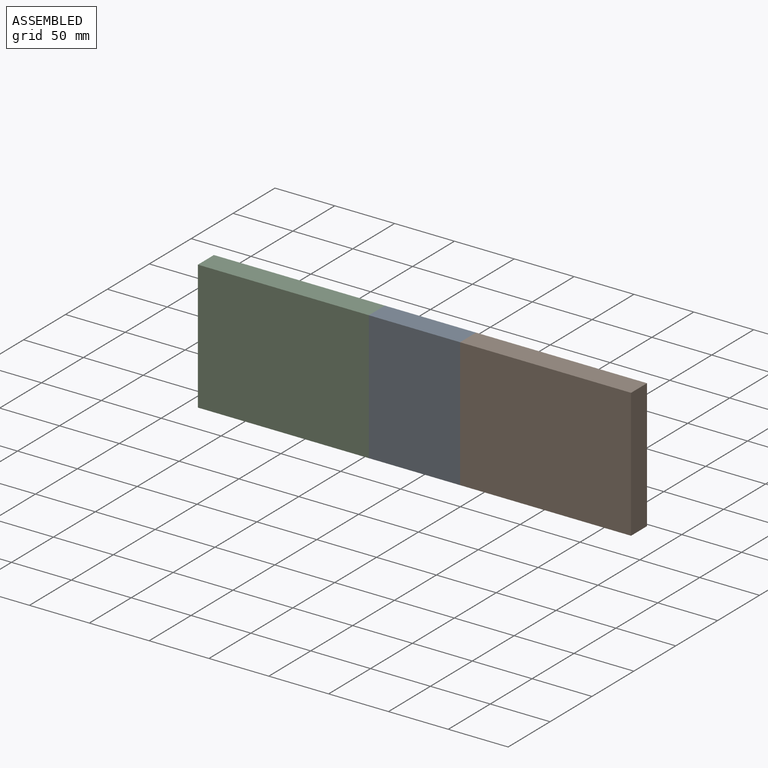
[diagram: assembled view]
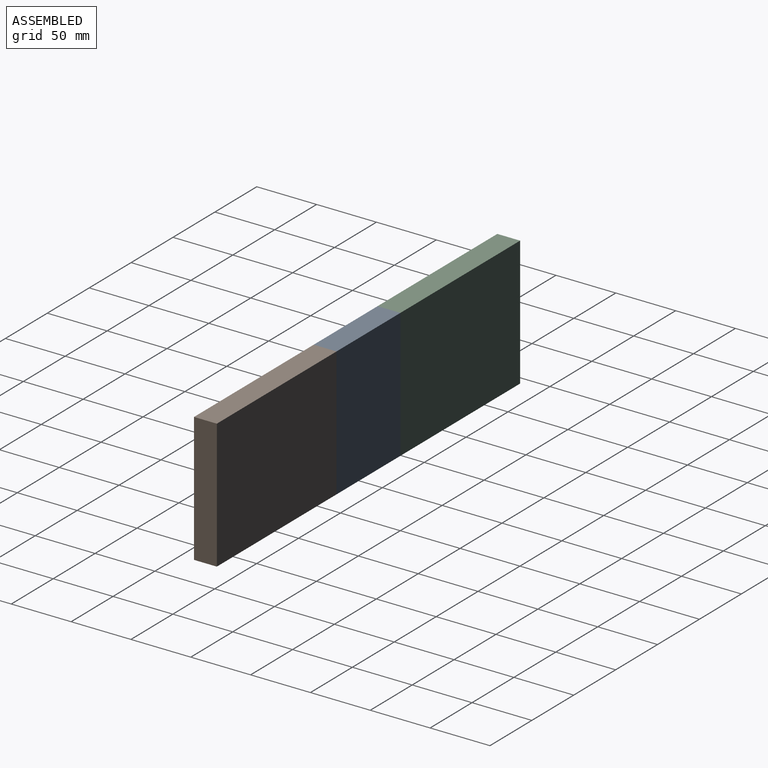
[diagram: assembled view, second angle]
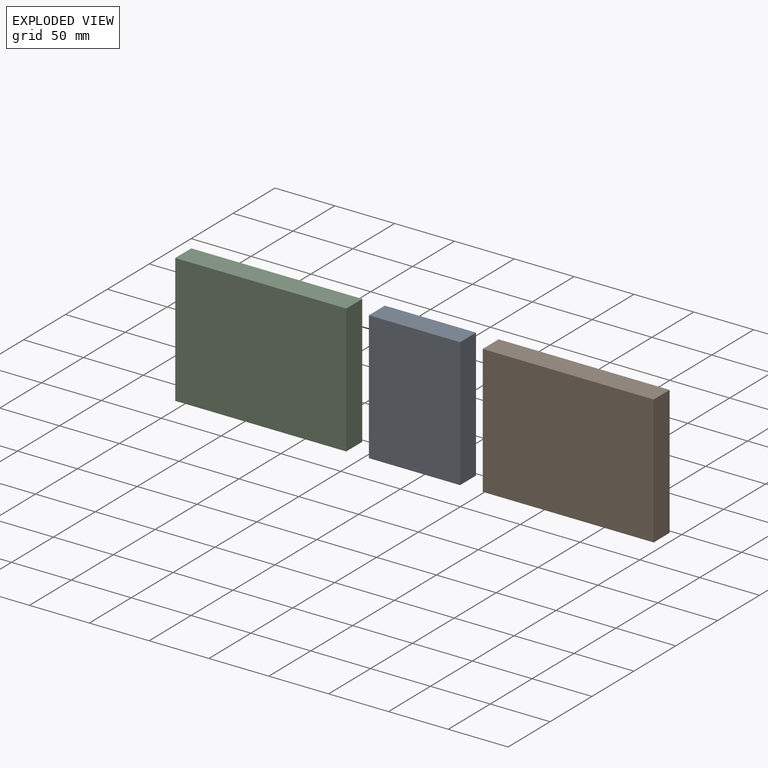
[diagram: exploded view]
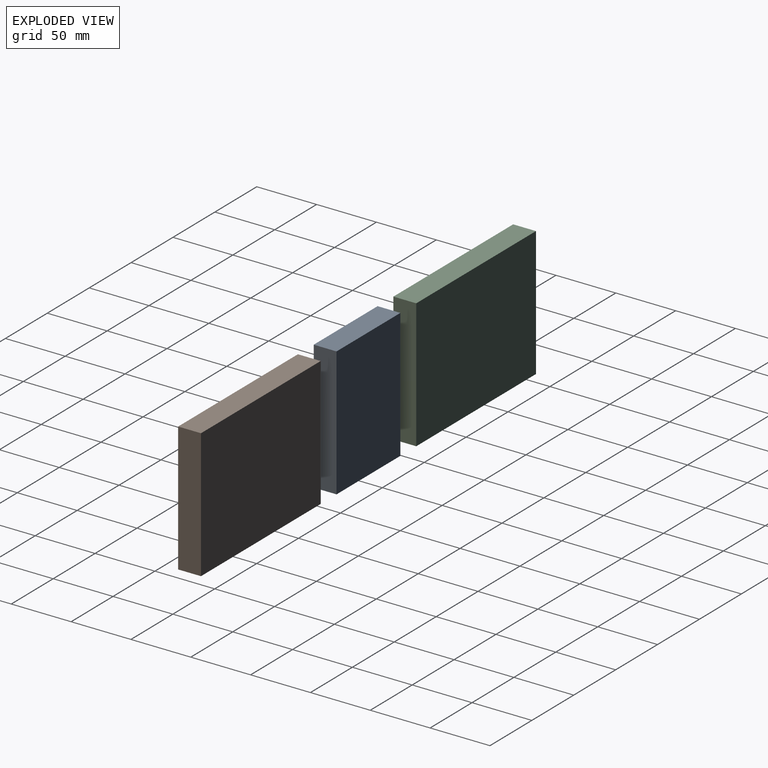
[diagram: exploded view, second angle]
ASSEMBLY  parts=3 mates=2
PART A: 6 faces, bbox 76.2x19.1x108 mm
  f0: plane 76.2x19.05mm, normal (0,0,1), area 1451.6mm2, adj f1,f3,f4,f5
  f1: plane 107.95x19.05mm, normal (-1,0,0), area 2056.4mm2, adj f0,f2,f4,f5
  f2: plane 76.2x19.05mm, normal (0,0,-1), area 1451.6mm2, adj f1,f3,f4,f5
  f3: plane 107.95x19.05mm, normal (1,0,0), area 2056.4mm2, adj f0,f2,f4,f5
  f4: plane 107.95x76.2mm, normal (0,-1,0), area 8225.8mm2, adj f0,f1,f2,f3
  f5: plane 107.95x76.2mm, normal (0,1,0), area 8225.8mm2, adj f0,f1,f2,f3
PART B: 6 faces, bbox 142.9x19.1x108 mm
  f0: plane 142.88x19.05mm, normal (0,0,-1), area 2721.8mm2, adj f1,f3,f4,f5
  f1: plane 107.95x19.05mm, normal (1,0,0), area 2056.4mm2, adj f0,f2,f4,f5
  f2: plane 142.88x19.05mm, normal (0,0,1), area 2721.8mm2, adj f1,f3,f4,f5
  f3: plane 107.95x19.05mm, normal (-1,0,0), area 2056.4mm2, adj f0,f2,f4,f5
  f4: plane 142.88x107.95mm, normal (0,1,0), area 15423.4mm2, adj f0,f1,f2,f3
  f5: plane 142.88x107.95mm, normal (0,-1,0), area 15423.4mm2, adj f0,f1,f2,f3
PART C: same geometry as B
PLACE A t=(-1.27,-12.44,-3.52)mm
PLACE B t=(108.27,-31.49,-3.52)mm
PLACE C t=(-110.81,-31.49,-3.52)mm
MATE fastened C.f1 <-> A.f1  axis (1,0,0) through (-39.37,-21.97,-3.52)mm
MATE fastened B.f3 <-> A.f3  axis (-1,0,0) through (36.83,-21.97,-3.52)mm
